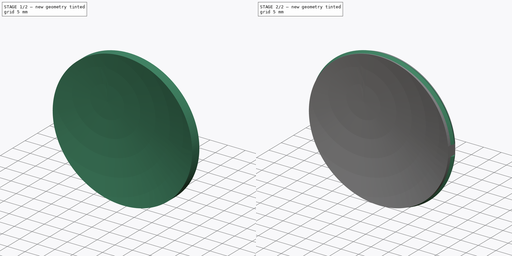
[diagram: build sequence overview — one tinted view per stage of 2, left to right]
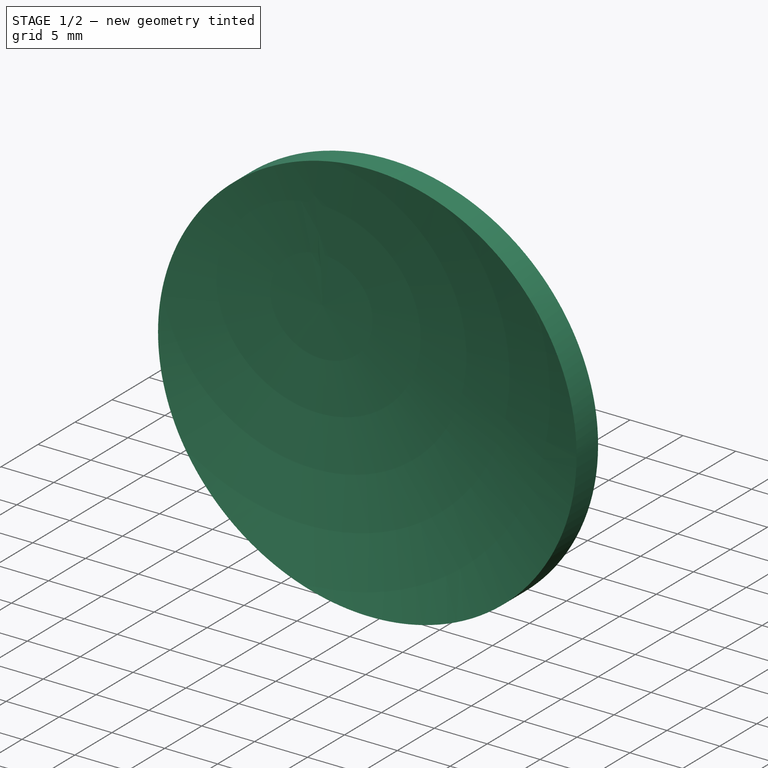
[diagram: stage 1 of 2 — iso view after this stage's code; geometry added in this stage tinted green]
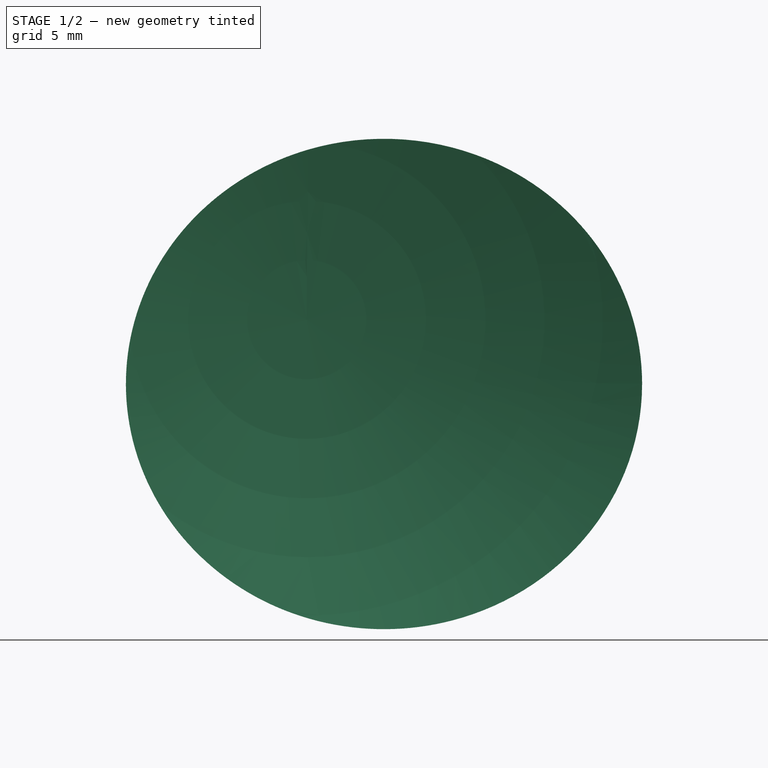
[diagram: stage 1 of 2 — front view after this stage's code; geometry added in this stage tinted green]
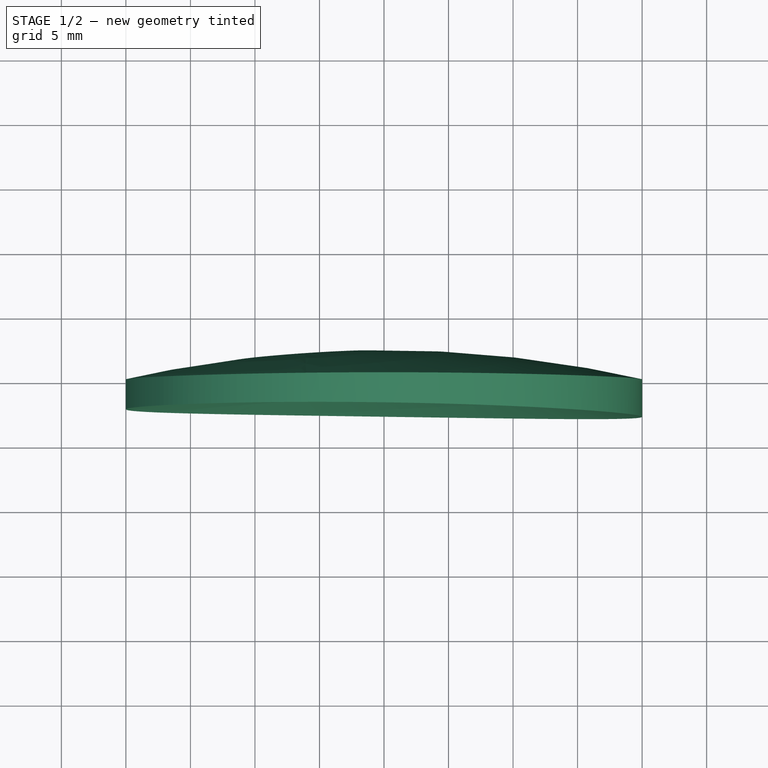
[diagram: stage 1 of 2 — top view after this stage's code; geometry added in this stage tinted green]
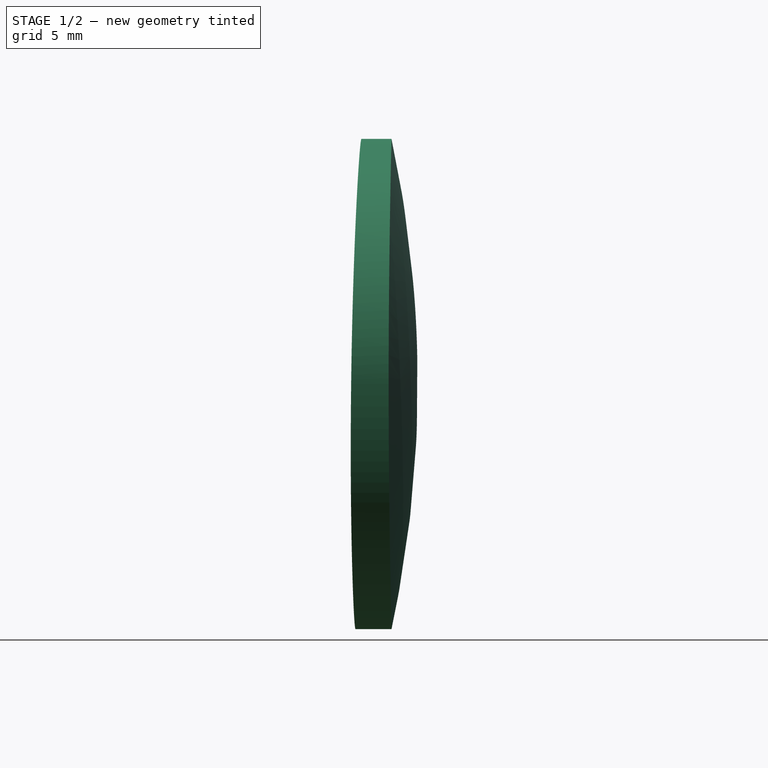
[diagram: stage 1 of 2 — right view after this stage's code; geometry added in this stage tinted green]
FCSTD DOCUMENT  (FreeCAD 1.1R39029 (Git))
Label: lens_example
License: All rights reserved
LicenseURL: http://en.wikipedia.org/wiki/All_rights_reserved
objects: Sketcher::SketchObject×7, PartDesign::Plane×2, PartDesign::Pocket×2, PartDesign::Line×1, PartDesign::Revolution×1, PartDesign::AdditivePipe×1, PartDesign::Body×1, App::Part×1
note: 30 computed .brp shape members not serialized (recipe doc carries the construction recipe); baked Part::Feature solids carry a one-line shape summary decoded from their .brp

FEATURE [Sketcher::SketchObject] Sketch  label="Relative horizontal position of blank with respect to final cut lens' front face edge"
  ArcFitTolerance = 1e-06
  AttachmentSupport = -> [XY_Plane001]
  FullyConstrained = true
  MakeInternals = false
  MapMode = 5
  sketch-geometry (7):
    g0: LineSegment StartX=-6 StartY=0 StartZ=0 EndX=1.15e-14 EndY=-87.7496 EndZ=0
    g1: ArcOfCircle CenterX=1.15e-14 CenterY=-87.7496 CenterZ=0 NormalX=0 NormalY=0 NormalZ=1 AngleXU=0 Radius=90 StartAngle=1.23964 EndAngle=2.03849
    g2: LineSegment [constr] StartX=-40.5747 StartY=-7.41477 StartZ=0 EndX=1.42e-14 EndY=-87.7496 EndZ=0
    g3: LineSegment [constr] StartX=29.2622 StartY=-2.63958 StartZ=0 EndX=1.07e-14 EndY=-87.7496 EndZ=0
    g4: LineSegment [constr] StartX=-40.5747 StartY=-7.41477 StartZ=0 EndX=29.2622 EndY=-2.63958 EndZ=0
    g5: LineSegment StartX=-20 StartY=0 StartZ=0 EndX=20 EndY=0 EndZ=0
    g6: LineSegment StartX=0 StartY=0 StartZ=0 EndX=0 EndY=2.25036 EndZ=0
  constraints (21):
    c: PointOnObject(g0,g-1)
    c: Distance(g0,g-2) = 6
    c: Coincident(g1,g0)
    c: Coincident(g2,g1)
    c: Coincident(g2,g0)
    c: Coincident(g3,g1)
    c: Coincident(g3,g0)
    c: Coincident(g4,g1)
    c: Coincident(g4,g1)
    c: Perpendicular(g4,g0)
    c: PointOnObject(g5,g1)
    c: PointOnObject(g5,g1)
    c: PointOnObject(g5,g-1)
    c: Symmetric(g5,g5,g-2)
    c: Distance(g5,g5) = 40
    c: Distance(g4,g4) = 70
    c: Radius(g1) = 90
    c: Coincident(g6,g-1)
    c: PointOnObject(g6,g1)
    c: Distance(g6,g6) = 2.25036
    c: Vertical(g6)
FEATURE [PartDesign::Plane] DatumPlane  label="Blank's outer spherical lens' center's vertical plane"
  AttachmentOffset = pos=(0,0,0) rot=(0,1,0;1.5708rad)
  AttachmentSupport = -> [Sketch]
  Length = 129.305
  MapMode = 7
  Placement = pos=(1.24e-14,-87.7496,0) rot=(-0.60362,0.563756,0.563756;4.22775rad)
  ResizeMode = 0
  Width = 65.1124
FEATURE [PartDesign::Line] DatumLine  label="Cut lens' vertical center plane"
  AttacherType = Attacher::AttachEngineLine
  AttachmentSupport = -> [XZ_Plane001,DatumPlane]
  Length = 20
  MapMode = 30
  Placement = pos=(-6,7.1e-15,-4e-16) rot=(0,1,0;3.14159rad)
  ResizeMode = 0
FEATURE [Sketcher::SketchObject] Sketch001  label="Relative vertical position of blank with respect to final cut lens' front face edge"
  ArcFitTolerance = 1e-06
  AttachmentSupport = -> [DatumPlane]
  ExternalGeometry = -> [DatumLine]
  FullyConstrained = true
  MakeInternals = false
  MapMode = 5
  Placement = pos=(1.24e-14,-87.7496,0) rot=(0.60362,-0.563756,-0.563756;2.05544rad)
  sketch-geometry (4):
    g0: LineSegment StartX=-87.9545 StartY=5 StartZ=0 EndX=0 EndY=-4.4e-15 EndZ=0
    g1: ArcOfCircle CenterX=0 CenterY=-4.1e-15 CenterZ=0 NormalX=0 NormalY=0 NormalZ=1 AngleXU=0 Radius=89.9833 StartAngle=2.6853 EndAngle=3.48431
    g2: LineSegment [constr] StartX=-80.7774 StartY=39.6485 StartZ=0 EndX=-84.7504 EndY=-30.2387 EndZ=0
    g3: LineSegment StartX=-87.9545 StartY=19 StartZ=0 EndX=-87.9545 EndY=-19 EndZ=0
  constraints (13):
    c: PointOnObject(g0,g-3)
    c: Distance(g0,g-1) = 5
    c: Coincident(g1,g0)
    c: Coincident(g2,g1)
    c: Perpendicular(g2,g0)
    c: Coincident(g2,g1)
    c: Distance(g2,g2) = 70
    c: PointOnObject(g3,g1)
    c: PointOnObject(g3,g1)
    c: Symmetric(g3,g3,g-1)
    c: PointOnObject(g3,g-3)
    c: DistanceY(g3,g3) = 38
    c: PointOnObject(g0,g-2)
FEATURE [Sketcher::SketchObject] Sketch002
  ArcFitTolerance = 1e-06
  AttachmentSupport = -> [DatumPlane]
  ExternalGeometry = -> [Sketch001]
  FullyConstrained = true
  MakeInternals = false
  MapMode = 5
  Placement = pos=(1.24e-14,-87.7496,0) rot=(0.60362,-0.563756,-0.563756;2.05544rad)
  sketch-geometry (4):
    g0: ArcOfCircle CenterX=-14.9592 CenterY=0.850393 CenterZ=0 NormalX=0 NormalY=0 NormalZ=1 AngleXU=0 Radius=73 StartAngle=2.58478 EndAngle=3.08481
    g1: LineSegment StartX=-80.7774 StartY=39.6485 StartZ=0 EndX=-76.9319 EndY=39.4299 EndZ=0
    g2: ArcOfCircle CenterX=0 CenterY=0 CenterZ=0 NormalX=0 NormalY=0 NormalZ=1 AngleXU=0 Radius=89.9833 StartAngle=2.6853 EndAngle=3.08481
    g3: LineSegment StartX=-89.8383 StartY=5.10709 StartZ=0 EndX=-87.8415 EndY=4.99357 EndZ=0
  constraints (12):
    c: PointOnObject(g0,g-4)
    c: PointOnObject(g0,g-4)
    c: Radius(g0) = 73
    c: Coincident(g1,g-3)
    c: Coincident(g1,g0)
    c: Parallel(g-4,g1)
    c: Coincident(g2,g1)
    c: Coincident(g2,g-1)
    c: Coincident(g3,g2)
    c: Coincident(g3,g0)
    c: Parallel(g3,g-4)
    c: Distance(g2,g0) = 2
FEATURE [PartDesign::Revolution] Revolution  label="Lens blank"
  Angle = 360
  Angle2 = 60
  Axis = (0.0681071,-0.996062,-0.0567559)
  Base = (-6,0,5)
  Placement = pos=(1.24e-14,-87.7496,0) rot=(-0.60362,0.563756,0.563756;4.22775rad)
  Profile = -> Sketch002
  ReferenceAxis = -> Sketch001 [Edge1]
  Suppressed = false
  Type = 0
FEATURE [Sketcher::SketchObject] Sketch003
  ArcFitTolerance = 1e-06
  AttachmentSupport = -> [XZ_Plane001]
  ExternalGeometry = -> [Sketch,Sketch001]
  FullyConstrained = true
  MakeInternals = false
  MapMode = 5
  Placement = pos=(0,0,0) rot=(1,0,0;1.5708rad)
  sketch-geometry (6):
    g0: Ellipse CenterX=0 CenterY=0 CenterZ=0 NormalX=0 NormalY=0 NormalZ=1 MajorRadius=20 MinorRadius=19 AngleXU=-2.406e-13
    g1: LineSegment [constr] StartX=20 StartY=0 StartZ=0 EndX=-20 EndY=0 EndZ=0
    g2: LineSegment [constr] StartX=-4.938e-13 StartY=19 StartZ=0 EndX=4.938e-13 EndY=-19 EndZ=0
    g3: GeomPoint [constr] X=6.245 Y=-1.5025e-12 Z=0
    g4: GeomPoint [constr] X=-6.245 Y=1.5024e-12 Z=0
    g5: Circle CenterX=0 CenterY=0 CenterZ=0 NormalX=0 NormalY=0 NormalZ=1 AngleXU=0 Radius=75
  constraints (6):
    c: InternalAlignment(g1-g4 -> g0) x4
    c: Coincident(g0,g-1)
    c: Coincident(g-3,g1)
    c: Horizontal(g2,g-4)
    c: Coincident(g5,g0)
    c: Diameter(g5) = 150
FEATURE [PartDesign::Pocket] Pocket  label="Cut lens"
  BaseFeature = -> Revolution
  Direction = (0,1,-2e-16)
  Length = 5
  Length2 = 5
  Midplane = true
  Placement = pos=(1.24e-14,-87.7496,0) rot=(-0.60362,0.563756,0.563756;4.22775rad)
  Profile = -> Sketch003
  ReferenceAxis = -> Sketch003 [N_Axis]
  Suppressed = false
  Type = 1
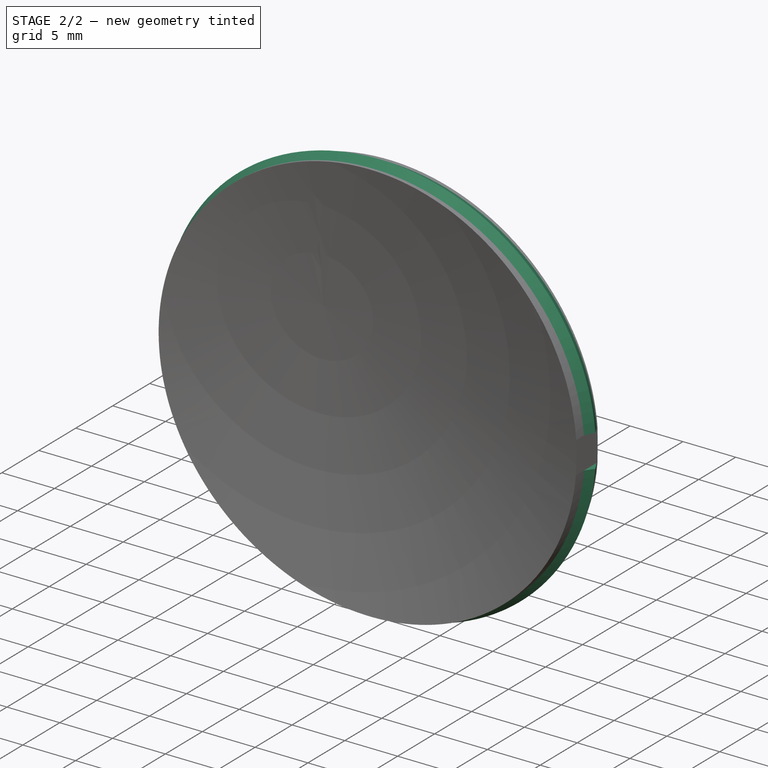
[diagram: stage 2 of 2 — iso view after this stage's code; geometry added in this stage tinted green]
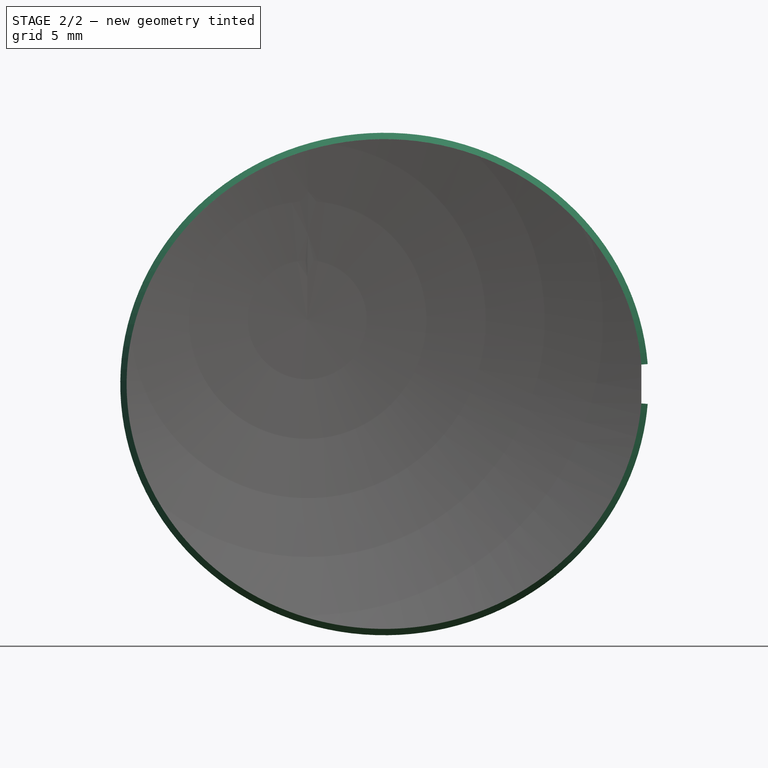
[diagram: stage 2 of 2 — front view after this stage's code; geometry added in this stage tinted green]
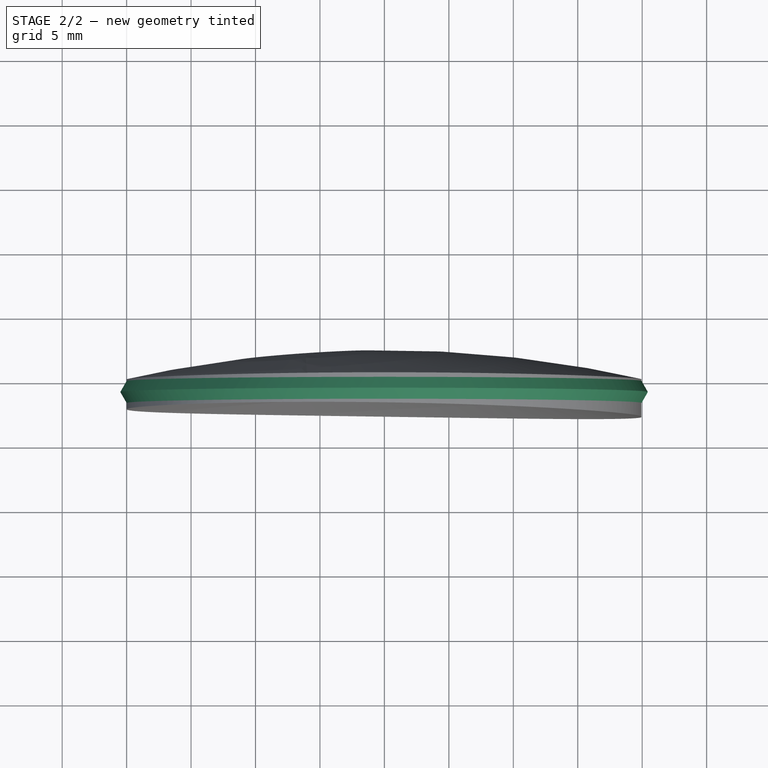
[diagram: stage 2 of 2 — top view after this stage's code; geometry added in this stage tinted green]
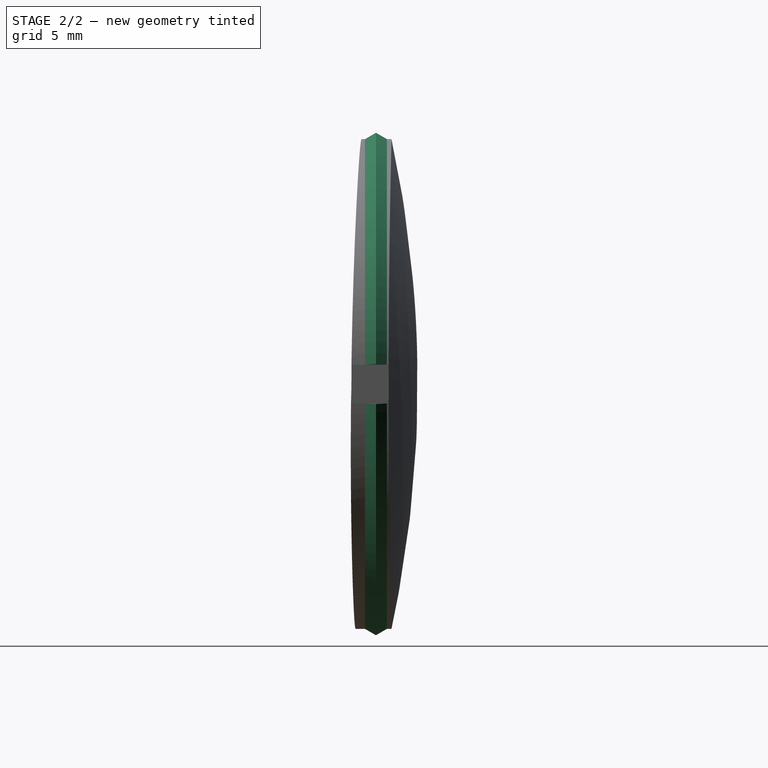
[diagram: stage 2 of 2 — right view after this stage's code; geometry added in this stage tinted green]
FEATURE [PartDesign::Plane] DatumPlane001  label="Bevel edge plane"
  AttachmentOffset = pos=(0,0,1) rot=(0,0,1;0rad)
  AttachmentSupport = -> [XZ_Plane001]
  Length = 60
  MapMode = 5
  Placement = pos=(0,-1,2e-16) rot=(1,0,0;1.5708rad)
  ResizeMode = 0
  Width = 60
FEATURE [Sketcher::SketchObject] Sketch004
  ArcFitTolerance = 1e-06
  AttachmentSupport = -> [XY_Plane001]
  ExternalGeometry = -> [Sketch003,DatumPlane001]
  FullyConstrained = true
  MakeInternals = false
  MapMode = 5
  sketch-geometry (5):
    g0: LineSegment StartX=20 StartY=-0.15 StartZ=0 EndX=20.4907 EndY=-1 EndZ=0
    g1: LineSegment StartX=20 StartY=-1.85 StartZ=0 EndX=20.4907 EndY=-1 EndZ=0
    g2: LineSegment [constr] StartX=20 StartY=7.474e-13 StartZ=0 EndX=20 EndY=-0.15 EndZ=0
    g3: LineSegment StartX=20 StartY=-0.15 StartZ=0 EndX=20 EndY=-1.85 EndZ=0
    g4: LineSegment [constr] StartX=20 StartY=-1.85 StartZ=0 EndX=20 EndY=-2 EndZ=0
  constraints (15):
    c: Coincident(g1,g0)
    c: Coincident(g2,g3)
    c: Vertical(g2)
    c: Coincident(g3,g4)
    c: Vertical(g3)
    c: Vertical(g4)
    c: Equal(g4,g2)
    c: DistanceY(g2,g2) = 0.15
    c: Coincident(g0,g2)
    c: Coincident(g3,g1)
    c: Equal(g0,g1)
    c: Angle(g0,g1) = 2.0944
    c: PointOnObject(g0,g-4)
    c: PointOnObject(g-3,g3)
    c: DistanceY(g4,g2) = 2
FEATURE [PartDesign::AdditivePipe] AdditivePipe  label="Bevel"
  AuxilleryCurvelinear = true
  AuxillerySpineTangent = false
  BaseFeature = -> Pocket
  Binormal = (0,0,0)
  Mode = 0
  Placement = pos=(1.24e-14,-87.7496,0) rot=(-0.60362,0.563756,0.563756;4.22775rad)
  Profile = -> Sketch004 [?Edge2]
  Spine = -> Sketch003 [Edge1]
  SpineTangent = false
  Suppressed = false
  Transformation = 0
  Transition = 0
FEATURE [Sketcher::SketchObject] Sketch005
  ArcFitTolerance = 1e-06
  AttachmentSupport = -> [XZ_Plane001]
  ExternalGeometry = -> [Sketch003,Sketch004]
  FullyConstrained = true
  MakeInternals = false
  MapMode = 5
  Placement = pos=(0,0,0) rot=(1,0,0;1.5708rad)
  sketch-geometry (4):
    g0: LineSegment StartX=19.9369 StartY=1.5081 StartZ=0 EndX=20.4907 EndY=1.55 EndZ=0
    g1: LineSegment StartX=20.4907 StartY=1.55 StartZ=0 EndX=20.4907 EndY=-1.55 EndZ=0
    g2: LineSegment StartX=20.4907 StartY=-1.55 StartZ=0 EndX=19.9369 EndY=-1.5081 EndZ=0
    g3: LineSegment StartX=19.9369 StartY=1.5081 StartZ=0 EndX=19.9369 EndY=-1.5081 EndZ=0
  constraints (12):
    c: Coincident(g1,g0)
    c: Vertical(g1)
    c: Coincident(g2,g1)
    c: Vertical(g2,g0)
    c: DistanceY(g1,g1) = 3.1
    c: Coincident(g3,g0)
    c: Coincident(g3,g2)
    c: PointOnObject(g0,g-3)
    c: PointOnObject(g2,g-3)
    c: PointOnObject(g-1,g0)
    c: PointOnObject(g-1,g2)
    c: PointOnObject(g-4,g1)
FEATURE [PartDesign::Pocket] Pocket001  label="Registration notch"
  BaseFeature = -> AdditivePipe
  Direction = (0,1,-2e-16)
  Length = 5
  Length2 = 5
  Midplane = true
  Placement = pos=(1.24e-14,-87.7496,0) rot=(-0.60362,0.563756,0.563756;4.22775rad)
  Profile = -> Sketch005
  ReferenceAxis = -> Sketch005 [N_Axis]
  Suppressed = false
  Type = 1
FEATURE [Sketcher::SketchObject] Sketch006  label="Lens center marker"
  ArcFitTolerance = 1e-06
  AttachmentSupport = -> [DatumPlane001]
  FullyConstrained = true
  MakeInternals = false
  MapMode = 5
  Placement = pos=(0,-1,2e-16) rot=(1,0,0;1.5708rad)
  sketch-geometry (1):
    g0: Circle CenterX=0 CenterY=0 CenterZ=0 NormalX=0 NormalY=0 NormalZ=1 AngleXU=0 Radius=0.5
  constraints (2):
    c: Coincident(g0,g-1)
    c: Diameter(g0) = 1
FEATURE [PartDesign::Body] Body
  AllowCompound = false
  Group = -> [Sketch,DatumPlane,DatumLine,Sketch001,Sketch002,Revolution,Sketch003,Pocket,Sketch004,DatumPlane001,Sketch006,AdditivePipe,Sketch005,Pocket001]
  Origin = -> Origin001
  Tip = -> Pocket001
FEATURE [App::Part] Part
  Group = -> [Body]
  Origin = -> Origin
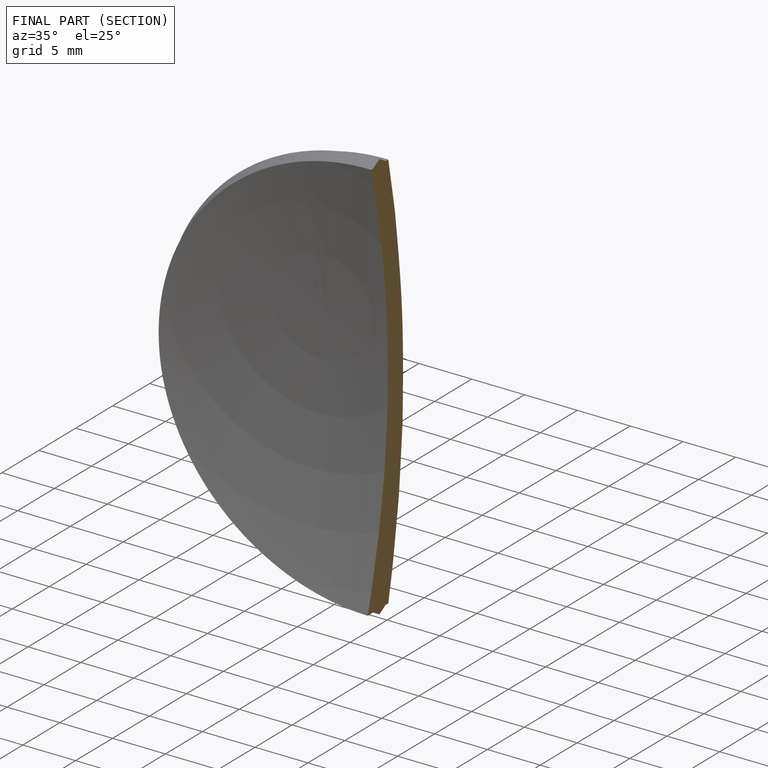
[diagram: finished part — half-section view (interior)]
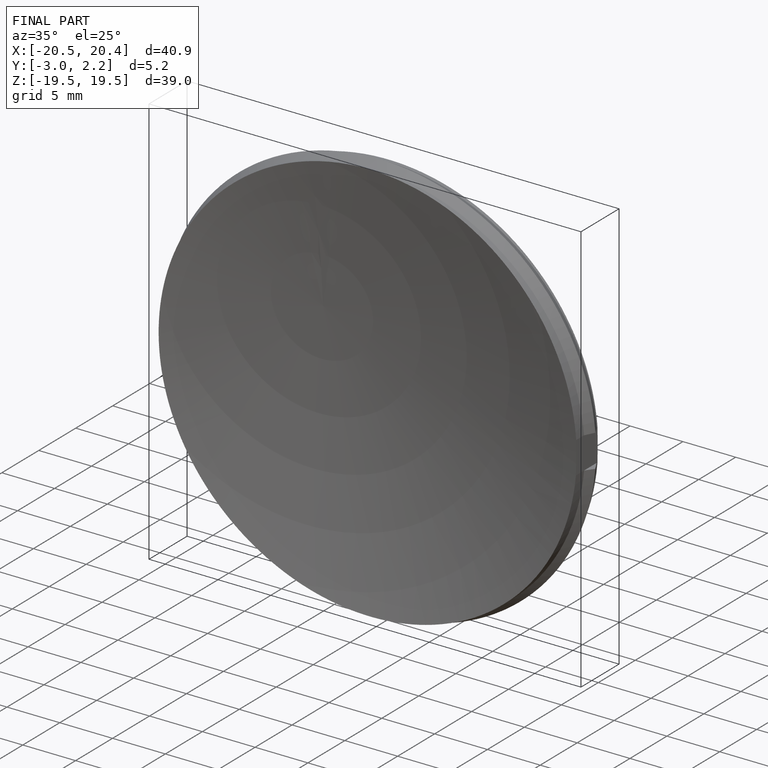
[diagram: finished part — iso view with bounding-box wireframe]
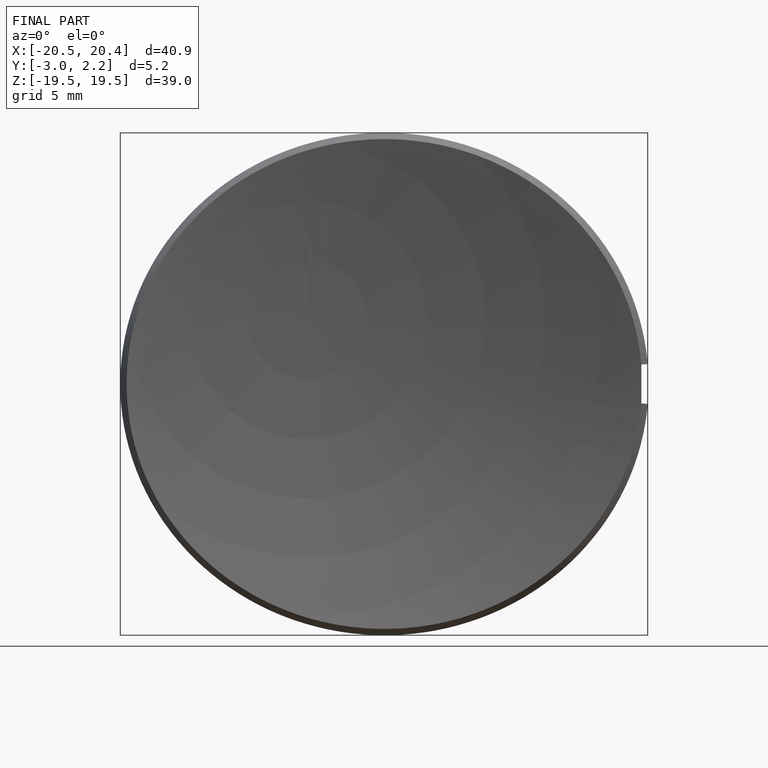
[diagram: finished part — front view with bounding-box wireframe]
